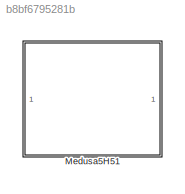
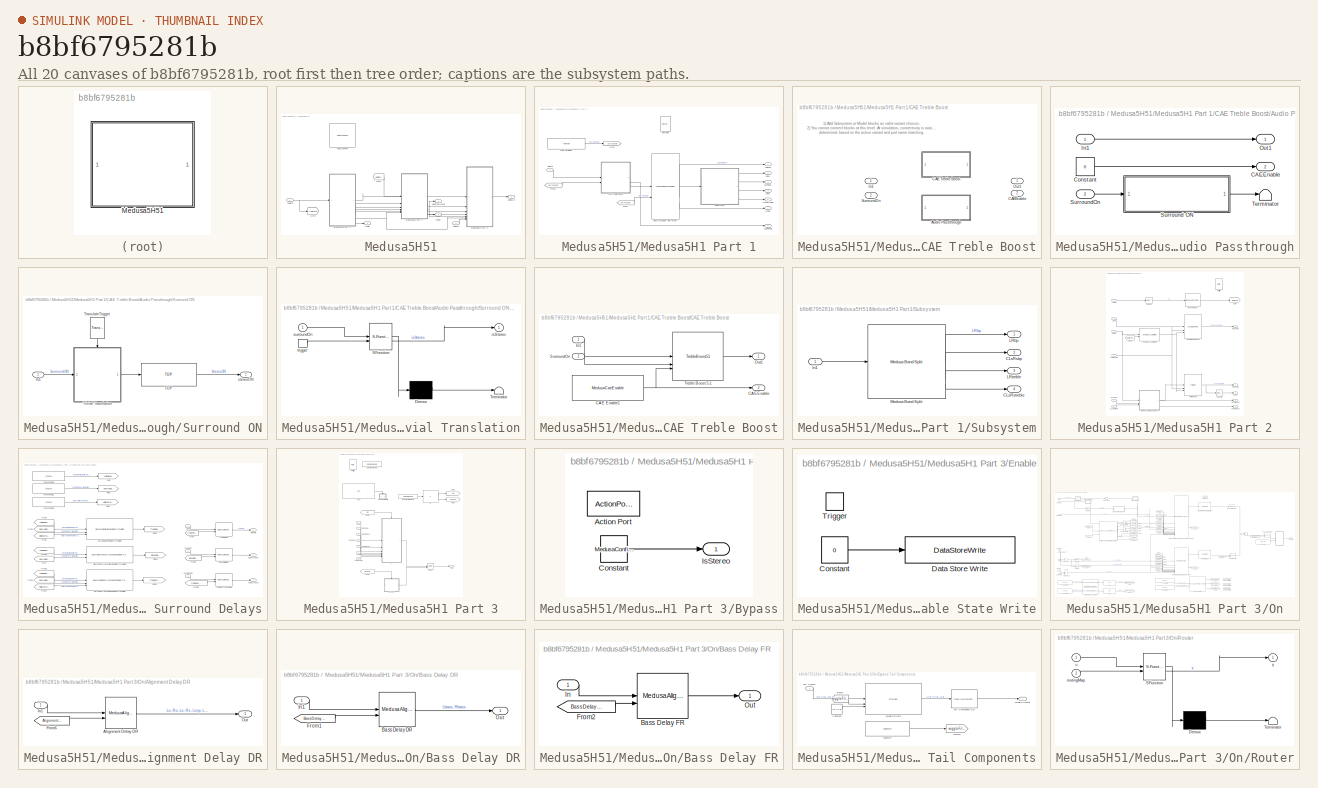
[diagram: thumbnail index - all 20 canvases of the model, root first then tree order]
MODEL slx_b8bf6795281b
KIND library
CONFIG AbsTol = auto
CONFIG EnableMultiTasking = off
CONFIG FixedStep = auto
CONFIG MaxStep = auto
CONFIG MinStep = auto
CONFIG RelTol = 1e-3
CONFIG SampleTimeConstraint = Unconstrained
CONFIG SolverName = VariableStepAuto
CONFIG StartTime = 0.0
CONFIG StopTime = 10.0
BLOCK [SubSystem] Medusa5H51
BLOCK [Inport] Medusa5H51/AudioIn
BLOCK [Outport] Medusa5H51/AudioOut
  VectorParamsAs1DForOutWhenUnconnected = off
BLOCK [Inport] Medusa5H51/FadeIn
  OutDataTypeStr = single
  Port = 2
BLOCK [Reference] Medusa5H51/FeaturePath  REF=FeaturePath/FeaturePath
  SourceBlock = FeaturePath/FeaturePath
  SourceProductName = Bose Talaria
  SourceType = Talaria Feature Path
BLOCK [From] Medusa5H51/From
  GotoTag = AudioIn
BLOCK [Goto] Medusa5H51/Goto
  GotoTag = AudioIn
BLOCK [Outport] Medusa5H51/HFRef
  Port = 3
BLOCK [Outport] Medusa5H51/HFRefSurround
  Port = 4
BLOCK [Outport] Medusa5H51/LFRef
  Port = 2
BLOCK [SubSystem] Medusa5H51/Medusa5H1 Part 1
  RTWSystemCode = Nonreusable function
  TreatAsAtomicUnit = on
BLOCK [Inport] Medusa5H51/Medusa5H1 Part 1/AudioIn
BLOCK [Reference] Medusa5H51/Medusa5H1 Part 1/Bass Manager with Mono  REF=BassManager/MedusaBassManager
  SourceBlock = BassManager/MedusaBassManager
  SourceType = Bass Manager
BLOCK [SubSystem] Medusa5H51/Medusa5H1 Part 1/CAE Treble Boost
  Variant = on
BLOCK [SubSystem] Medusa5H51/Medusa5H1 Part 1/CAE Treble Boost/Audio Passthrough
  VariantControl = include_CAE == 0
BLOCK [Outport] Medusa5H51/Medusa5H1 Part 1/CAE Treble Boost/Audio Passthrough/CAEEnable
  Port = 2
BLOCK [Constant] Medusa5H51/Medusa5H1 Part 1/CAE Treble Boost/Audio Passthrough/Constant
  OutDataTypeStr = int32
  SampleTime = -1
  Value = 0
BLOCK [Inport] Medusa5H51/Medusa5H1 Part 1/CAE Treble Boost/Audio Passthrough/In1
BLOCK [Outport] Medusa5H51/Medusa5H1 Part 1/CAE Treble Boost/Audio Passthrough/Out1
BLOCK [SubSystem] Medusa5H51/Medusa5H1 Part 1/CAE Treble Boost/Audio Passthrough/Surround ON
BLOCK [Inport] Medusa5H51/Medusa5H1 Part 1/CAE Treble Boost/Audio Passthrough/Surround ON/In1
BLOCK [Reference] Medusa5H51/Medusa5H1 Part 1/CAE Treble Boost/Audio Passthrough/Surround ON/TOP  REF=TOP/TOP
  SourceBlock = TOP/TOP
  SourceProductName = Bose Talaria
  SourceType = Talaria Target Overlay Parameter
BLOCK [Reference] Medusa5H51/Medusa5H1 Part 1/CAE Treble Boost/Audio Passthrough/Surround ON/TranslateTrigger  REF=TuneVar/TranslateTrigger
  NameLocation = left
  SourceBlock = TuneVar/TranslateTrigger
  SourceProductName = Bose Talaria
  SourceType = Talaria Translate Trigger
BLOCK [SubSystem] Medusa5H51/Medusa5H1 Part 1/CAE Treble Boost/Audio Passthrough/Surround ON/Trivial Translation
  ErrorFcn = Stateflow.Translate.translate
  PermitHierarchicalResolution = ExplicitOnly
  SFBlockType = MATLAB Function
  TreatAsAtomicUnit = on
BLOCK [Demux] Medusa5H51/Medusa5H1 Part 1/CAE Treble Boost/Audio Passthrough/Surround ON/Trivial Translation/ Demux 
  Outputs = 1
BLOCK [S-Function] Medusa5H51/Medusa5H1 Part 1/CAE Treble Boost/Audio Passthrough/Surround ON/Trivial Translation/ SFunction 
  EnableBusSupport = off
  FunctionName = sf_sfun
  PortCounts = [2 2]
  SFcnIsStateOwnerBlock = off
  SFunctionDeploymentMode = off
  Tag = Stateflow S-Function 6
BLOCK [Terminator] Medusa5H51/Medusa5H1 Part 1/CAE Treble Boost/Audio Passthrough/Surround ON/Trivial Translation/ Terminator 
BLOCK [Outport] Medusa5H51/Medusa5H1 Part 1/CAE Treble Boost/Audio Passthrough/Surround ON/Trivial Translation/isStereo
  VectorParamsAs1DForOutWhenUnconnected = off
BLOCK [Inport] Medusa5H51/Medusa5H1 Part 1/CAE Treble Boost/Audio Passthrough/Surround ON/Trivial Translation/surroundOn
BLOCK [TriggerPort] Medusa5H51/Medusa5H1 Part 1/CAE Treble Boost/Audio Passthrough/Surround ON/Trivial Translation/trigger
  ShowOutputPort = on
  StatesWhenEnabling = held
  TriggerType = function-call
  VariantControl = Variant
BLOCK [Outport] Medusa5H51/Medusa5H1 Part 1/CAE Treble Boost/Audio Passthrough/Surround ON/stereoON
  VectorParamsAs1DForOutWhenUnconnected = off
BLOCK [Inport] Medusa5H51/Medusa5H1 Part 1/CAE Treble Boost/Audio Passthrough/SurroundOn
  Port = 2
BLOCK [Terminator] Medusa5H51/Medusa5H1 Part 1/CAE Treble Boost/Audio Passthrough/Terminator
BLOCK [SubSystem] Medusa5H51/Medusa5H1 Part 1/CAE Treble Boost/CAE Treble Boost
  VariantControl = include_CAE == 1
BLOCK [Reference] Medusa5H51/Medusa5H1 Part 1/CAE Treble Boost/CAE Treble Boost/CAE Enable1  REF=MedusaCaeEnable/MedusaCaeEnable
  SourceBlock = MedusaCaeEnable/MedusaCaeEnable
BLOCK [Outport] Medusa5H51/Medusa5H1 Part 1/CAE Treble Boost/CAE Treble Boost/CAEEnable
  Port = 2
BLOCK [Inport] Medusa5H51/Medusa5H1 Part 1/CAE Treble Boost/CAE Treble Boost/In1
BLOCK [Outport] Medusa5H51/Medusa5H1 Part 1/CAE Treble Boost/CAE Treble Boost/Out1
BLOCK [Inport] Medusa5H51/Medusa5H1 Part 1/CAE Treble Boost/CAE Treble Boost/SurroundOn
  Port = 2
BLOCK [Reference] Medusa5H51/Medusa5H1 Part 1/CAE Treble Boost/CAE Treble Boost/Treble Boost 5.1  REF=TrebleBoost/TrebleBoost51
  SourceBlock = TrebleBoost/TrebleBoost51
BLOCK [Outport] Medusa5H51/Medusa5H1 Part 1/CAE Treble Boost/CAEEnable
  Port = 2
BLOCK [Inport] Medusa5H51/Medusa5H1 Part 1/CAE Treble Boost/In1
BLOCK [Outport] Medusa5H51/Medusa5H1 Part 1/CAE Treble Boost/Out1
BLOCK [Inport] Medusa5H51/Medusa5H1 Part 1/CAE Treble Boost/SurroundOn
  Port = 2
BLOCK [Outport] Medusa5H51/Medusa5H1 Part 1/CAEEnable
  Port = 6
BLOCK [Outport] Medusa5H51/Medusa5H1 Part 1/CLsRsbp
  Port = 4
  VectorParamsAs1DForOutWhenUnconnected = off
BLOCK [Outport] Medusa5H51/Medusa5H1 Part 1/CLsRstreble
  Port = 5
  VectorParamsAs1DForOutWhenUnconnected = off
BLOCK [From] Medusa5H51/Medusa5H1 Part 1/From
  GotoTag = SurroundOn
BLOCK [From] Medusa5H51/Medusa5H1 Part 1/From1
  GotoTag = SurroundOn
BLOCK [Goto] Medusa5H51/Medusa5H1 Part 1/Goto
  GotoTag = SurroundOn
BLOCK [Outport] Medusa5H51/Medusa5H1 Part 1/LFRef
  Port = 7
BLOCK [Outport] Medusa5H51/Medusa5H1 Part 1/LRbass
  VectorParamsAs1DForOutWhenUnconnected = off
BLOCK [Outport] Medusa5H51/Medusa5H1 Part 1/LRbp
  Port = 2
  VectorParamsAs1DForOutWhenUnconnected = off
BLOCK [Outport] Medusa5H51/Medusa5H1 Part 1/LRhp
  Port = 3
  VectorParamsAs1DForOutWhenUnconnected = off
BLOCK [Reference] Medusa5H51/Medusa5H1 Part 1/Partition  REF=FeaturePath/Partition
  SourceBlock = FeaturePath/Partition
  SourceProductName = Bose Talaria
  SourceType = Talaria Partition
BLOCK [SubSystem] Medusa5H51/Medusa5H1 Part 1/Subsystem
  FunctionWithSeparateData = on
  RTWFileName = MedusaBandSplit
  RTWFileNameOpts = User specified
  RTWSystemCode = Nonreusable function
  TreatAsAtomicUnit = on
BLOCK [Outport] Medusa5H51/Medusa5H1 Part 1/Subsystem/CLsRsbp
  Port = 2
  VectorParamsAs1DForOutWhenUnconnected = off
BLOCK [Outport] Medusa5H51/Medusa5H1 Part 1/Subsystem/CLsRstreble
  Port = 4
  VectorParamsAs1DForOutWhenUnconnected = off
BLOCK [Inport] Medusa5H51/Medusa5H1 Part 1/Subsystem/In1
BLOCK [Outport] Medusa5H51/Medusa5H1 Part 1/Subsystem/LRbp
  VectorParamsAs1DForOutWhenUnconnected = off
BLOCK [Outport] Medusa5H51/Medusa5H1 Part 1/Subsystem/LRtreble
  Port = 3
  VectorParamsAs1DForOutWhenUnconnected = off
BLOCK [Reference] Medusa5H51/Medusa5H1 Part 1/Subsystem/Medusa Band Split  REF=MedusaBandSplit/Medusa Band Split
  SourceBlock = MedusaBandSplit/Medusa Band Split
  SourceType = Medusa Band Split 5.1
BLOCK [Reference] Medusa5H51/Medusa5H1 Part 1/Tune Variable4  REF=TuneVar/TuneVar
  Description = General surround control parameter\nSTEREO_MODE = 0\nSURROUND_PASSTHRU_MODE = 1\nMEDUSA_2_CHANNEL_MODE = 2\nMEDUSA_5_1_MODE = 3
  SourceBlock = TuneVar/TuneVar
  SourceProductName = Bose Talaria
  SourceType = Talaria Tune Variable
BLOCK [SubSystem] Medusa5H51/Medusa5H1 Part 2
  RTWSystemCode = Nonreusable function
  TreatAsAtomicUnit = on
BLOCK [Inport] Medusa5H51/Medusa5H1 Part 2/AudioIn
  OutDataTypeStr = single
BLOCK [Inport] Medusa5H51/Medusa5H1 Part 2/CAEEnable
  Port = 6
BLOCK [Inport] Medusa5H51/Medusa5H1 Part 2/CLsRsbp
  Port = 4
BLOCK [Inport] Medusa5H51/Medusa5H1 Part 2/CLsRstreble
  Port = 5
BLOCK [Outport] Medusa5H51/Medusa5H1 Part 2/DRComps
  VectorParamsAs1DForOutWhenUnconnected = off
BLOCK [Outport] Medusa5H51/Medusa5H1 Part 2/DRSurround
  Port = 3
  VectorParamsAs1DForOutWhenUnconnected = off
BLOCK [Reference] Medusa5H51/Medusa5H1 Part 2/Decimated-Rate FDP  REF=MedusaFDP/Decimated-Rate
  SourceBlock = MedusaFDP/Decimated-Rate
  SourceType = Medusa Decimated-Rate Frequency Domain Processing
BLOCK [Outport] Medusa5H51/Medusa5H1 Part 2/FRComps
  Port = 2
  VectorParamsAs1DForOutWhenUnconnected = off
BLOCK [Outport] Medusa5H51/Medusa5H1 Part 2/FRSurround
  Port = 4
  VectorParamsAs1DForOutWhenUnconnected = off
BLOCK [From] Medusa5H51/Medusa5H1 Part 2/From1
  GotoTag = isStereo
BLOCK [Reference] Medusa5H51/Medusa5H1 Part 2/Full-Rate FDP  REF=MedusaFullRateFDP/Full-Rate
  SourceBlock = MedusaFullRateFDP/Full-Rate
  SourceType = Medusa Full-Rate Frequency Domain Processing
BLOCK [Goto] Medusa5H51/Medusa5H1 Part 2/Goto7
  GotoTag = isStereo
BLOCK [Outport] Medusa5H51/Medusa5H1 Part 2/HFRef
  Port = 5
BLOCK [Inport] Medusa5H51/Medusa5H1 Part 2/LRbp
  Port = 2
BLOCK [Inport] Medusa5H51/Medusa5H1 Part 2/LRhp
  Port = 3
BLOCK [Reference] Medusa5H51/Medusa5H1 Part 2/Mono Detector  REF=MonoDetector/MedusaMonoDetector
  SourceBlock = MonoDetector/MedusaMonoDetector
  SourceType = Mono Detector
BLOCK [Reference] Medusa5H51/Medusa5H1 Part 2/Partition  REF=FeaturePath/Partition
  SourceBlock = FeaturePath/Partition
  SourceProductName = Bose Talaria
  SourceType = Talaria Partition
BLOCK [Reference] Medusa5H51/Medusa5H1 Part 2/SPUM Decay Estimate  REF=MedusaSPUMDecayEst/SPUM Decay Estimate
  SourceBlock = MedusaSPUMDecayEst/SPUM Decay Estimate
BLOCK [Selector] Medusa5H51/Medusa5H1 Part 2/Selector
  IndexOptions = Select all,Index vector (dialog)
  Indices = [1 3],[1,2]
  InputPortWidth = 3
  NumberOfDimensions = 2
  OutputSizes = 1,1
BLOCK [Selector] Medusa5H51/Medusa5H1 Part 2/Selector1
  IndexOptions = Select all,Index vector (dialog)
  Indices = [1 3],[1 2 3 5]
  InputPortWidth = 3
  NumberOfDimensions = 2
  OutputSizes = 1,1
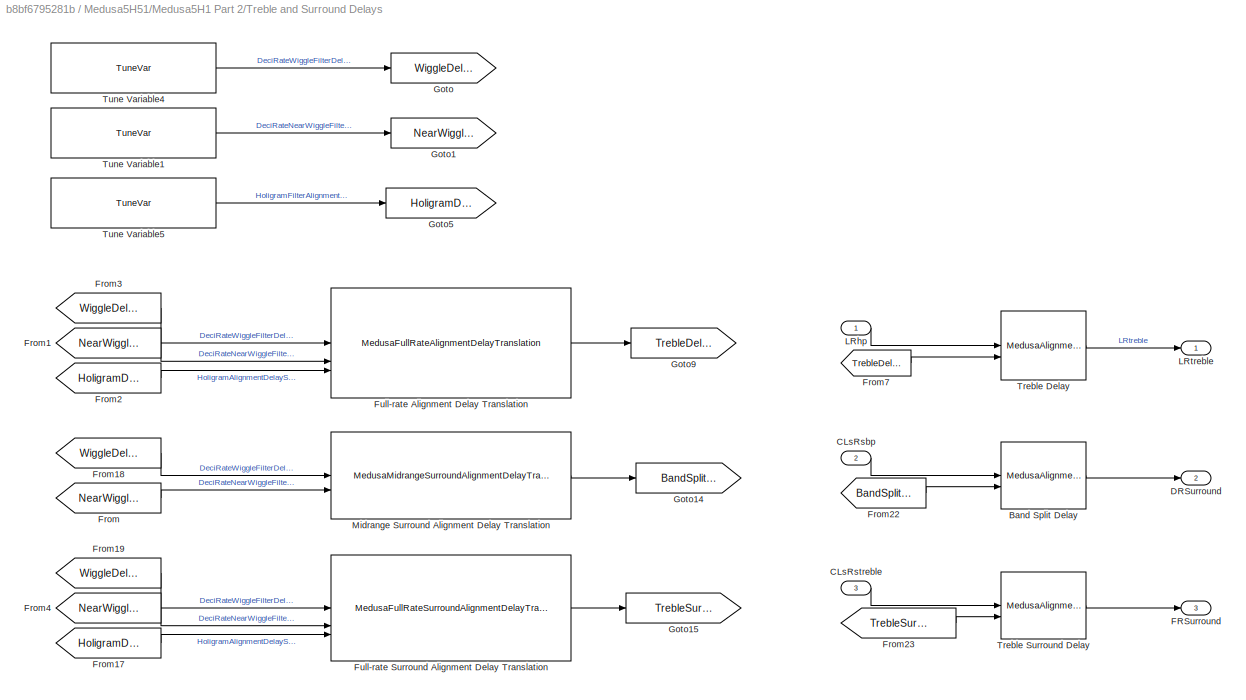
BLOCK [SubSystem] Medusa5H51/Medusa5H1 Part 2/Treble and Surround Delays
  FunctionWithSeparateData = on
  RTWSystemCode = Nonreusable function
  TreatAsAtomicUnit = on
BLOCK [Reference] Medusa5H51/Medusa5H1 Part 2/Treble and Surround Delays/Band Split Delay  REF=MedusaDelays/MedusaAlignmentDelay
  SourceBlock = MedusaDelays/MedusaAlignmentDelay
  SourceType = Fixed Alignment Delay
BLOCK [Inport] Medusa5H51/Medusa5H1 Part 2/Treble and Surround Delays/CLsRsbp
  Port = 2
BLOCK [Inport] Medusa5H51/Medusa5H1 Part 2/Treble and Surround Delays/CLsRstreble
  Port = 3
BLOCK [Outport] Medusa5H51/Medusa5H1 Part 2/Treble and Surround Delays/DRSurround
  Port = 2
BLOCK [Outport] Medusa5H51/Medusa5H1 Part 2/Treble and Surround Delays/FRSurround
  Port = 3
BLOCK [From] Medusa5H51/Medusa5H1 Part 2/Treble and Surround Delays/From
  GotoTag = NearWiggleDelay
BLOCK [From] Medusa5H51/Medusa5H1 Part 2/Treble and Surround Delays/From1
  GotoTag = NearWiggleDelay
BLOCK [From] Medusa5H51/Medusa5H1 Part 2/Treble and Surround Delays/From17
  GotoTag = HoligramDelay
BLOCK [From] Medusa5H51/Medusa5H1 Part 2/Treble and Surround Delays/From18
  GotoTag = WiggleDelay
BLOCK [From] Medusa5H51/Medusa5H1 Part 2/Treble and Surround Delays/From19
  GotoTag = WiggleDelay
BLOCK [From] Medusa5H51/Medusa5H1 Part 2/Treble and Surround Delays/From2
  GotoTag = HoligramDelay
BLOCK [From] Medusa5H51/Medusa5H1 Part 2/Treble and Surround Delays/From22
  GotoTag = BandSplitDelay
BLOCK [From] Medusa5H51/Medusa5H1 Part 2/Treble and Surround Delays/From23
  GotoTag = TrebleSurroundDelay
BLOCK [From] Medusa5H51/Medusa5H1 Part 2/Treble and Surround Delays/From3
  GotoTag = WiggleDelay
BLOCK [From] Medusa5H51/Medusa5H1 Part 2/Treble and Surround Delays/From4
  GotoTag = NearWiggleDelay
BLOCK [From] Medusa5H51/Medusa5H1 Part 2/Treble and Surround Delays/From7
  GotoTag = TrebleDelay
BLOCK [Reference] Medusa5H51/Medusa5H1 Part 2/Treble and Surround Delays/Full-rate Alignment Delay Translation  REF=MedusaDelays/MedusaFullRateAlignmentDelayTranslation
  SourceBlock = MedusaDelays/MedusaFullRateAlignmentDelayTranslation
  SourceType = Alignment Delay Translation
BLOCK [Reference] Medusa5H51/Medusa5H1 Part 2/Treble and Surround Delays/Full-rate Surround Alignment Delay Translation  REF=MedusaDelays/MedusaFullRateSurroundAlignmentDelayTranslation
  SourceBlock = MedusaDelays/MedusaFullRateSurroundAlignmentDelayTranslation
BLOCK [Goto] Medusa5H51/Medusa5H1 Part 2/Treble and Surround Delays/Goto
  GotoTag = WiggleDelay
BLOCK [Goto] Medusa5H51/Medusa5H1 Part 2/Treble and Surround Delays/Goto1
  GotoTag = NearWiggleDelay
BLOCK [Goto] Medusa5H51/Medusa5H1 Part 2/Treble and Surround Delays/Goto14
  GotoTag = BandSplitDelay
BLOCK [Goto] Medusa5H51/Medusa5H1 Part 2/Treble and Surround Delays/Goto15
  GotoTag = TrebleSurroundDelay
BLOCK [Goto] Medusa5H51/Medusa5H1 Part 2/Treble and Surround Delays/Goto5
  GotoTag = HoligramDelay
BLOCK [Goto] Medusa5H51/Medusa5H1 Part 2/Treble and Surround Delays/Goto9
  GotoTag = TrebleDelay
BLOCK [Inport] Medusa5H51/Medusa5H1 Part 2/Treble and Surround Delays/LRhp
BLOCK [Outport] Medusa5H51/Medusa5H1 Part 2/Treble and Surround Delays/LRtreble
BLOCK [Reference] Medusa5H51/Medusa5H1 Part 2/Treble and Surround Delays/Midrange Surround Alignment Delay Translation  REF=MedusaDelays/MedusaMidrangeSurroundAlignmentDelayTranslation
  SourceBlock = MedusaDelays/MedusaMidrangeSurroundAlignmentDelayTranslation
BLOCK [Reference] Medusa5H51/Medusa5H1 Part 2/Treble and Surround Delays/Treble Delay  REF=MedusaDelays/MedusaAlignmentDelay
  SourceBlock = MedusaDelays/MedusaAlignmentDelay
  SourceType = Fixed Alignment Delay
BLOCK [Reference] Medusa5H51/Medusa5H1 Part 2/Treble and Surround Delays/Treble Surround Delay  REF=MedusaDelays/MedusaAlignmentDelay
  SourceBlock = MedusaDelays/MedusaAlignmentDelay
  SourceType = Fixed Alignment Delay
BLOCK [Reference] Medusa5H51/Medusa5H1 Part 2/Treble and Surround Delays/Tune Variable1  REF=TuneVar/TuneVar
  SourceBlock = TuneVar/TuneVar
  SourceProductName = Bose Talaria
  SourceType = Talaria Tune Variable
BLOCK [Reference] Medusa5H51/Medusa5H1 Part 2/Treble and Surround Delays/Tune Variable4  REF=TuneVar/TuneVar
  SourceBlock = TuneVar/TuneVar
  SourceProductName = Bose Talaria
  SourceType = Talaria Tune Variable
BLOCK [Reference] Medusa5H51/Medusa5H1 Part 2/Treble and Surround Delays/Tune Variable5  REF=TuneVar/TuneVar
  SourceBlock = TuneVar/TuneVar
  SourceProductName = Bose Talaria
  SourceType = Talaria Tune Variable
BLOCK [SubSystem] Medusa5H51/Medusa5H1 Part 3
  FunctionWithSeparateData = on
  RTWSystemCode = Nonreusable function
  TreatAsAtomicUnit = on
BLOCK [Inport] Medusa5H51/Medusa5H1 Part 3/Bass
BLOCK [SubSystem] Medusa5H51/Medusa5H1 Part 3/Bypass
BLOCK [ActionPort] Medusa5H51/Medusa5H1 Part 3/Bypass/Action Port
BLOCK [Constant] Medusa5H51/Medusa5H1 Part 3/Bypass/Constant
  OutDataTypeStr = single
  Value = MedusaConfig.outputDefault
BLOCK [Outport] Medusa5H51/Medusa5H1 Part 3/Bypass/IsStereo
  VectorParamsAs1DForOutWhenUnconnected = off
BLOCK [Inport] Medusa5H51/Medusa5H1 Part 3/CAEEnable
  Port = 6
BLOCK [Inport] Medusa5H51/Medusa5H1 Part 3/DRComps
  Port = 2
BLOCK [Inport] Medusa5H51/Medusa5H1 Part 3/DRSurround
  Port = 4
BLOCK [DataStoreMemory] Medusa5H51/Medusa5H1 Part 3/Data Store Memory
  DataStoreName = MedusaPostUpmixEnable
  InitialValue = 1
  OutDataTypeStr = uint32
  ReadBeforeWriteMsg = warning
  ShowAdditionalParam = off
  WriteAfterReadMsg = warning
  WriteAfterWriteMsg = warning
BLOCK [DataStoreRead] Medusa5H51/Medusa5H1 Part 3/Enable State Read
  DataStoreName = MedusaPostUpmixEnable
  IndexOptions = Index vector (dialog)
  Indices = 1
  OutputSizes = 1
BLOCK [SubSystem] Medusa5H51/Medusa5H1 Part 3/Enable State Write
BLOCK [Constant] Medusa5H51/Medusa5H1 Part 3/Enable State Write/Constant
  OutDataTypeStr = uint32
  Value = 0
BLOCK [DataStoreWrite] Medusa5H51/Medusa5H1 Part 3/Enable State Write/Data Store Write
  DataStoreName = MedusaPostUpmixEnable
  IndexOptions = Index vector (dialog)
  Indices = 1
  OutputSizes = 1
BLOCK [TriggerPort] Medusa5H51/Medusa5H1 Part 3/Enable State Write/Trigger
  PortDimensions = 1
  StatesWhenEnabling = held
  TriggerType = function-call
  VariantControl = Variant
BLOCK [Inport] Medusa5H51/Medusa5H1 Part 3/FRComps
  Port = 3
BLOCK [Inport] Medusa5H51/Medusa5H1 Part 3/FRSurround
  Port = 5
BLOCK [Inport] Medusa5H51/Medusa5H1 Part 3/FadeIn
  Port = 7
BLOCK [From] Medusa5H51/Medusa5H1 Part 3/From1
  GotoTag = Bypass
BLOCK [From] Medusa5H51/Medusa5H1 Part 3/From2
  GotoTag = On
BLOCK [Goto] Medusa5H51/Medusa5H1 Part 3/Goto2
  GotoTag = On
BLOCK [Goto] Medusa5H51/Medusa5H1 Part 3/Goto3
  GotoTag = Bypass
BLOCK [If] Medusa5H51/Medusa5H1 Part 3/If
BLOCK [Merge] Medusa5H51/Medusa5H1 Part 3/Merge
  InitialOutput = MedusaConfig.outputDefault
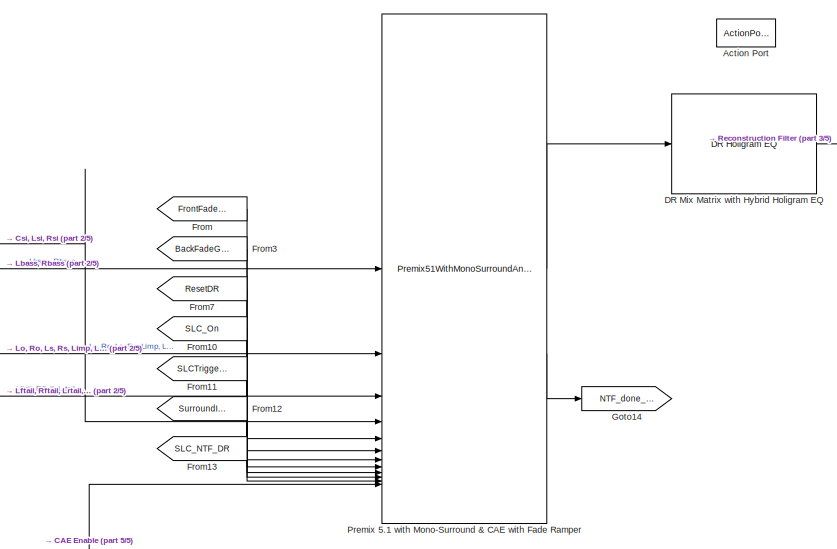
[diagram: Medusa5H51/Medusa5H1 Part 3/On - part 1/5, top center region]
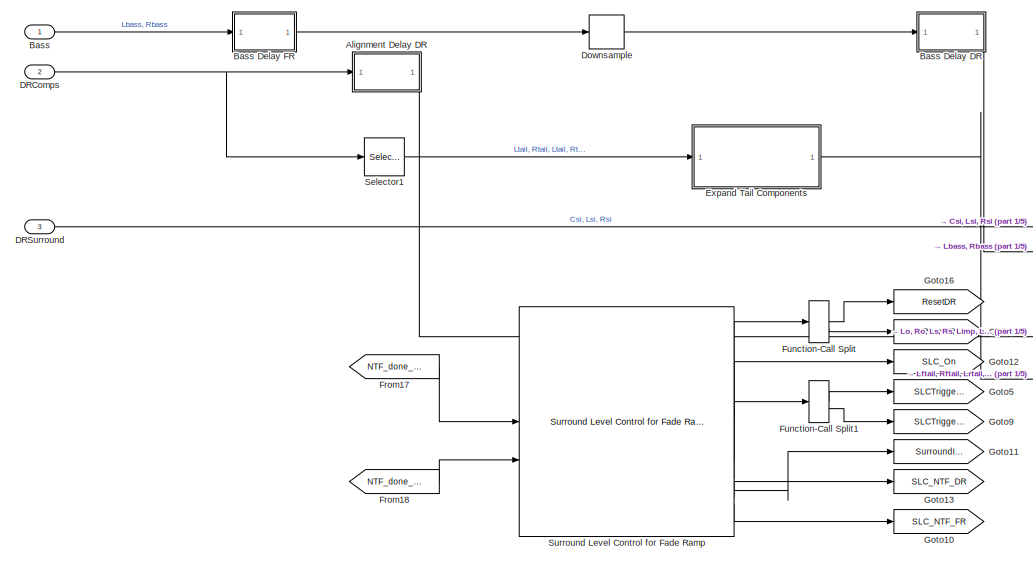
[diagram: Medusa5H51/Medusa5H1 Part 3/On - part 2/5, top left region]
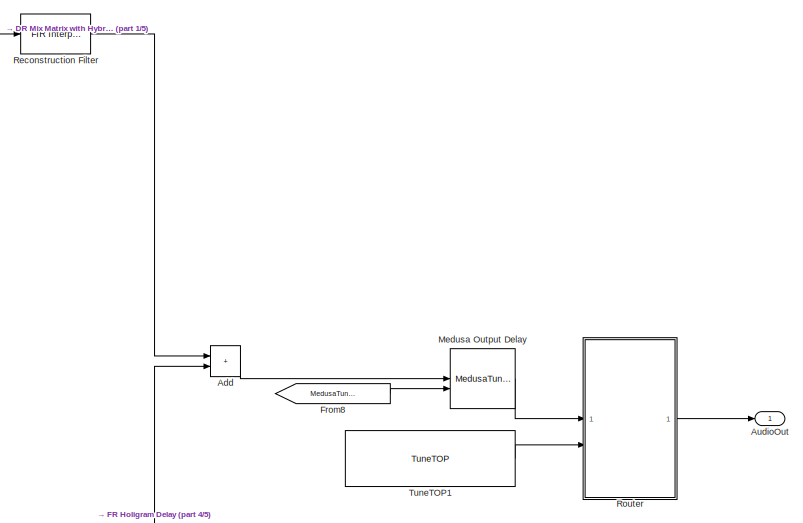
[diagram: Medusa5H51/Medusa5H1 Part 3/On - part 3/5, top right region]
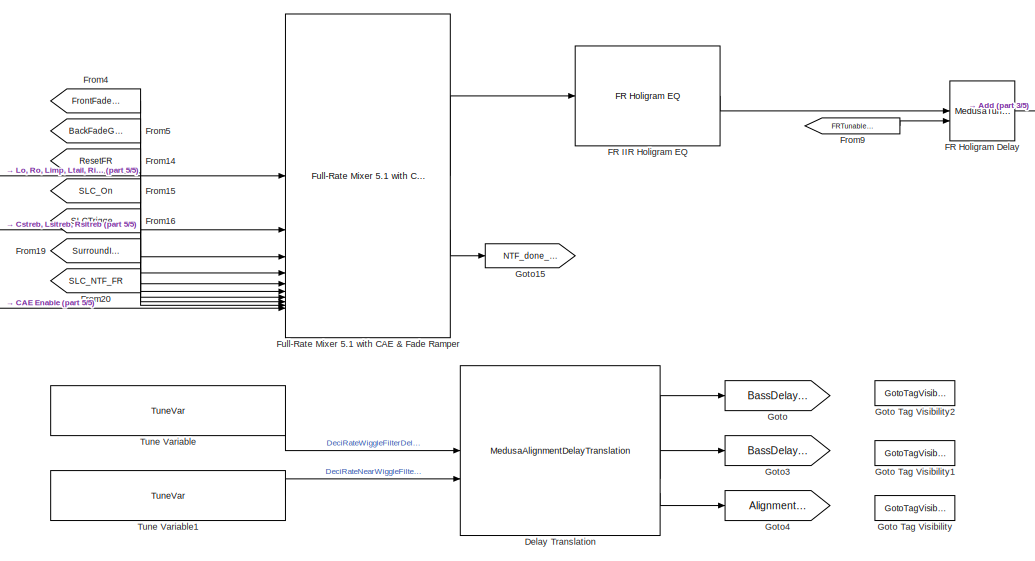
[diagram: Medusa5H51/Medusa5H1 Part 3/On - part 4/5, bottom center region]
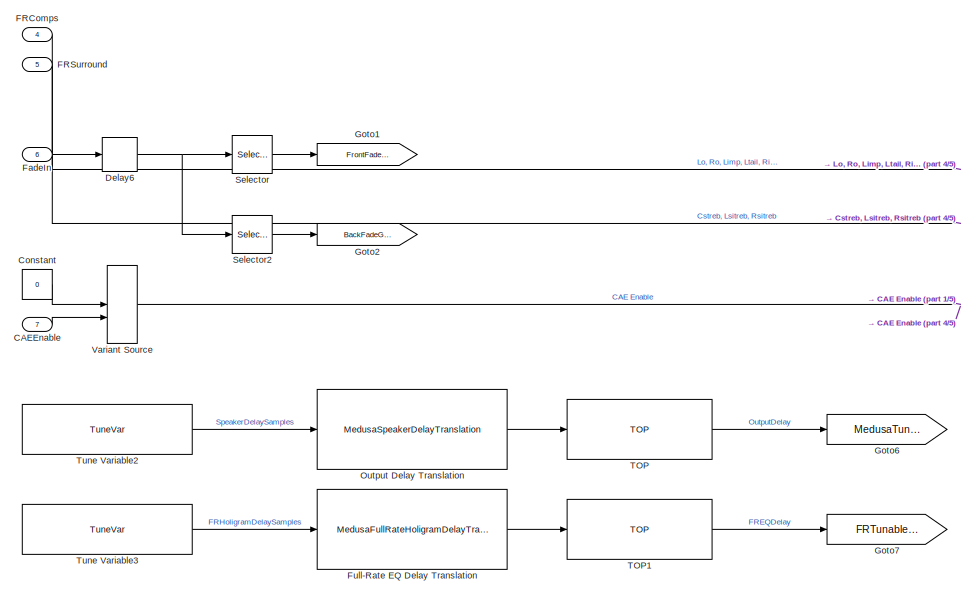
[diagram: Medusa5H51/Medusa5H1 Part 3/On - part 5/5, bottom left region]
BLOCK [SubSystem] Medusa5H51/Medusa5H1 Part 3/On
BLOCK [ActionPort] Medusa5H51/Medusa5H1 Part 3/On/Action Port
BLOCK [Sum] Medusa5H51/Medusa5H1 Part 3/On/Add
  IconShape = rectangular
BLOCK [SubSystem] Medusa5H51/Medusa5H1 Part 3/On/Alignment Delay DR
BLOCK [Reference] Medusa5H51/Medusa5H1 Part 3/On/Alignment Delay DR/Alignment Delay DR  REF=MedusaDelays/MedusaAlignmentDelay
  SourceBlock = MedusaDelays/MedusaAlignmentDelay
  SourceType = Fixed Alignment Delay
BLOCK [From] Medusa5H51/Medusa5H1 Part 3/On/Alignment Delay DR/From6
  GotoTag = AlignmentDelay
  TagVisibility = scoped
BLOCK [Inport] Medusa5H51/Medusa5H1 Part 3/On/Alignment Delay DR/In1
BLOCK [Outport] Medusa5H51/Medusa5H1 Part 3/On/Alignment Delay DR/Out
BLOCK [Outport] Medusa5H51/Medusa5H1 Part 3/On/AudioOut
  VectorParamsAs1DForOutWhenUnconnected = off
BLOCK [Inport] Medusa5H51/Medusa5H1 Part 3/On/Bass
  OutDataTypeStr = single
BLOCK [SubSystem] Medusa5H51/Medusa5H1 Part 3/On/Bass Delay DR
BLOCK [Reference] Medusa5H51/Medusa5H1 Part 3/On/Bass Delay DR/Bass Delay DR  REF=MedusaDelays/MedusaAlignmentDelay
  SourceBlock = MedusaDelays/MedusaAlignmentDelay
  SourceType = Fixed Alignment Delay
BLOCK [From] Medusa5H51/Medusa5H1 Part 3/On/Bass Delay DR/From1
  GotoTag = BassDelayDec
  TagVisibility = scoped
BLOCK [Inport] Medusa5H51/Medusa5H1 Part 3/On/Bass Delay DR/In1
BLOCK [Outport] Medusa5H51/Medusa5H1 Part 3/On/Bass Delay DR/Out
BLOCK [SubSystem] Medusa5H51/Medusa5H1 Part 3/On/Bass Delay FR
BLOCK [Reference] Medusa5H51/Medusa5H1 Part 3/On/Bass Delay FR/Bass Delay FR  REF=MedusaDelays/MedusaAlignmentDelay
  SourceBlock = MedusaDelays/MedusaAlignmentDelay
  SourceType = Fixed Alignment Delay
BLOCK [From] Medusa5H51/Medusa5H1 Part 3/On/Bass Delay FR/From2
  GotoTag = BassDelayFull
  TagVisibility = scoped
BLOCK [Inport] Medusa5H51/Medusa5H1 Part 3/On/Bass Delay FR/In
BLOCK [Outport] Medusa5H51/Medusa5H1 Part 3/On/Bass Delay FR/Out
BLOCK [Inport] Medusa5H51/Medusa5H1 Part 3/On/CAEEnable
  Port = 7
BLOCK [Constant] Medusa5H51/Medusa5H1 Part 3/On/Constant
  OutDataTypeStr = int32
  SampleTime = -1
  Value = 0
BLOCK [Reference] Medusa5H51/Medusa5H1 Part 3/On/DR Mix Matrix with Hybrid Holigram EQ  REF=MedusaDRHoligramEQ/DR Holigram EQ
  SourceBlock = MedusaDRHoligramEQ/DR Holigram EQ
BLOCK [Inport] Medusa5H51/Medusa5H1 Part 3/On/DRComps
  OutDataTypeStr = single
  Port = 2
BLOCK [Inport] Medusa5H51/Medusa5H1 Part 3/On/DRSurround
  Port = 3
BLOCK [Reference] Medusa5H51/Medusa5H1 Part 3/On/Delay Translation  REF=MedusaDelays/MedusaAlignmentDelayTranslation
  SourceBlock = MedusaDelays/MedusaAlignmentDelayTranslation
  SourceType = Alignment Delay Translation
BLOCK [Delay] Medusa5H51/Medusa5H1 Part 3/On/Delay6
  DelayLength = 1
  InitialCondition = 1.0
  InputPortMap = u0
BLOCK [DownSample] Medusa5H51/Medusa5H1 Part 3/On/Downsample
  N = 4
BLOCK [SubSystem] Medusa5H51/Medusa5H1 Part 3/On/Expand Tail Components
  FunctionWithSeparateData = on
  RTWFileName = MedusaExpandTailComps
  RTWFileNameOpts = User specified
  RTWSystemCode = Nonreusable function
  TreatAsAtomicUnit = on
BLOCK [Constant] Medusa5H51/Medusa5H1 Part 3/On/Expand Tail Components/Constant
  OutDataTypeStr = single
  SampleTime = -1
  Value = [0 1 2 3]
BLOCK [From] Medusa5H51/Medusa5H1 Part 3/On/Expand Tail Components/From6
  GotoTag = wiggleFilter
BLOCK [Goto] Medusa5H51/Medusa5H1 Part 3/On/Expand Tail Components/Goto10
  GotoTag = wiggleFilter
BLOCK [Reference] Medusa5H51/Medusa5H1 Part 3/On/Expand Tail Components/Tail Component EQ  REF=PooliirLib/PooliirwithNonTrivialTranslations
  SourceBlock = PooliirLib/PooliirwithNonTrivialTranslations
  SourceType = Bose Pool IIR
BLOCK [Inport] Medusa5H51/Medusa5H1 Part 3/On/Expand Tail Components/Tail Comps
BLOCK [Reference] Medusa5H51/Medusa5H1 Part 3/On/Expand Tail Components/TuneTOP  REF=TuneVar/TuneTOP
  SourceBlock = TuneVar/TuneTOP
  SourceProductName = Bose Talaria
  SourceType = Talaria Trivial Tune TOP
BLOCK [Outport] Medusa5H51/Medusa5H1 Part 3/On/Expand Tail Components/Wiggle Comps
  VectorParamsAs1DForOutWhenUnconnected = off
BLOCK [Reference] Medusa5H51/Medusa5H1 Part 3/On/Expand Tail Components/Wiggle Filters  REF=FirEven/FirEven
  SourceBlock = FirEven/FirEven
  SourceProductName = Bose Blocklib
BLOCK [Reference] Medusa5H51/Medusa5H1 Part 3/On/FR Holigram Delay  REF=MedusaDelays/MedusaTunableDelay
  SourceBlock = MedusaDelays/MedusaTunableDelay
  SourceType = Tunable Delay
BLOCK [Reference] Medusa5H51/Medusa5H1 Part 3/On/FR IIR Holigram EQ  REF=MedusaFRHoligramEQ/FR Holigram EQ
  SourceBlock = MedusaFRHoligramEQ/FR Holigram EQ
BLOCK [Inport] Medusa5H51/Medusa5H1 Part 3/On/FRComps
  OutDataTypeStr = single
  Port = 4
BLOCK [Inport] Medusa5H51/Medusa5H1 Part 3/On/FRSurround
  Port = 5
BLOCK [Inport] Medusa5H51/Medusa5H1 Part 3/On/FadeIn
  OutDataTypeStr = single
  Port = 6
BLOCK [From] Medusa5H51/Medusa5H1 Part 3/On/From
  GotoTag = FrontFadeGain
BLOCK [From] Medusa5H51/Medusa5H1 Part 3/On/From10
  GotoTag = SLC_On
BLOCK [From] Medusa5H51/Medusa5H1 Part 3/On/From11
  GotoTag = SLCTriggerDR
BLOCK [From] Medusa5H51/Medusa5H1 Part 3/On/From12
  GotoTag = SurroundInfo
BLOCK [From] Medusa5H51/Medusa5H1 Part 3/On/From13
  GotoTag = SLC_NTF_DR
BLOCK [From] Medusa5H51/Medusa5H1 Part 3/On/From14
  GotoTag = ResetFR
BLOCK [From] Medusa5H51/Medusa5H1 Part 3/On/From15
  GotoTag = SLC_On
BLOCK [From] Medusa5H51/Medusa5H1 Part 3/On/From16
  GotoTag = SLCTriggerFR
BLOCK [From] Medusa5H51/Medusa5H1 Part 3/On/From17
  GotoTag = NTF_done_DR
BLOCK [From] Medusa5H51/Medusa5H1 Part 3/On/From18
  GotoTag = NTF_done_FR
BLOCK [From] Medusa5H51/Medusa5H1 Part 3/On/From19
  GotoTag = SurroundInfo
BLOCK [From] Medusa5H51/Medusa5H1 Part 3/On/From20
  GotoTag = SLC_NTF_FR
BLOCK [From] Medusa5H51/Medusa5H1 Part 3/On/From3
  GotoTag = BackFadeGain
BLOCK [From] Medusa5H51/Medusa5H1 Part 3/On/From4
  GotoTag = FrontFadeGain
BLOCK [From] Medusa5H51/Medusa5H1 Part 3/On/From5
  GotoTag = BackFadeGain
BLOCK [From] Medusa5H51/Medusa5H1 Part 3/On/From7
  GotoTag = ResetDR
BLOCK [From] Medusa5H51/Medusa5H1 Part 3/On/From8
  GotoTag = MedusaTunableDelay
BLOCK [From] Medusa5H51/Medusa5H1 Part 3/On/From9
  GotoTag = FRTunableDelay
BLOCK [Reference] Medusa5H51/Medusa5H1 Part 3/On/Full-Rate EQ Delay Translation  REF=MedusaDelays/MedusaFullRateHoligramDelayTranslation
  SourceBlock = MedusaDelays/MedusaFullRateHoligramDelayTranslation
  SourceType = Tunable Delay Translation
BLOCK [Reference] Medusa5H51/Medusa5H1 Part 3/On/Full-Rate Mixer 5.1 with CAE & Fade Ramper  REF=MedusaFullRateMixer/Full-Rate Mixer 5.1 with CAE & Fade Ramper
  SourceBlock = MedusaFullRateMixer/Full-Rate Mixer 5.1 with CAE & Fade Ramper
BLOCK [FunctionCallSplit] Medusa5H51/Medusa5H1 Part 3/On/Function-Call Split
  IconShape = distinctive
  NumOutputPorts = 2
  OutputPortLayout = default
BLOCK [FunctionCallSplit] Medusa5H51/Medusa5H1 Part 3/On/Function-Call Split1
  IconShape = distinctive
  NumOutputPorts = 2
  OutputPortLayout = default
BLOCK [Goto] Medusa5H51/Medusa5H1 Part 3/On/Goto
  GotoTag = BassDelayDec
  TagVisibility = scoped
BLOCK [GotoTagVisibility] Medusa5H51/Medusa5H1 Part 3/On/Goto Tag Visibility
  GotoTag = AlignmentDelay
BLOCK [GotoTagVisibility] Medusa5H51/Medusa5H1 Part 3/On/Goto Tag Visibility1
  GotoTag = BassDelayFull
BLOCK [GotoTagVisibility] Medusa5H51/Medusa5H1 Part 3/On/Goto Tag Visibility2
  GotoTag = BassDelayDec
BLOCK [Goto] Medusa5H51/Medusa5H1 Part 3/On/Goto1
  GotoTag = FrontFadeGain
BLOCK [Goto] Medusa5H51/Medusa5H1 Part 3/On/Goto10
  GotoTag = SLC_NTF_FR
BLOCK [Goto] Medusa5H51/Medusa5H1 Part 3/On/Goto11
  GotoTag = SurroundInfo
BLOCK [Goto] Medusa5H51/Medusa5H1 Part 3/On/Goto12
  GotoTag = SLC_On
BLOCK [Goto] Medusa5H51/Medusa5H1 Part 3/On/Goto13
  GotoTag = SLC_NTF_DR
BLOCK [Goto] Medusa5H51/Medusa5H1 Part 3/On/Goto14
  GotoTag = NTF_done_DR
BLOCK [Goto] Medusa5H51/Medusa5H1 Part 3/On/Goto15
  GotoTag = NTF_done_FR
BLOCK [Goto] Medusa5H51/Medusa5H1 Part 3/On/Goto16
  GotoTag = ResetDR
BLOCK [Goto] Medusa5H51/Medusa5H1 Part 3/On/Goto2
  GotoTag = BackFadeGain
BLOCK [Goto] Medusa5H51/Medusa5H1 Part 3/On/Goto3
  GotoTag = BassDelayFull
  TagVisibility = scoped
BLOCK [Goto] Medusa5H51/Medusa5H1 Part 3/On/Goto4
  GotoTag = AlignmentDelay
  TagVisibility = scoped
BLOCK [Goto] Medusa5H51/Medusa5H1 Part 3/On/Goto5
  GotoTag = SLCTriggerDR
BLOCK [Goto] Medusa5H51/Medusa5H1 Part 3/On/Goto6
  GotoTag = MedusaTunableDelay
BLOCK [Goto] Medusa5H51/Medusa5H1 Part 3/On/Goto7
  GotoTag = FRTunableDelay
BLOCK [Goto] Medusa5H51/Medusa5H1 Part 3/On/Goto8
  GotoTag = ResetFR
BLOCK [Goto] Medusa5H51/Medusa5H1 Part 3/On/Goto9
  GotoTag = SLCTriggerFR
BLOCK [Reference] Medusa5H51/Medusa5H1 Part 3/On/Medusa Output Delay  REF=MedusaDelays/MedusaTunableDelay
  SourceBlock = MedusaDelays/MedusaTunableDelay
  SourceType = Tunable Delay
BLOCK [Reference] Medusa5H51/Medusa5H1 Part 3/On/Output Delay Translation  REF=MedusaDelays/MedusaSpeakerDelayTranslation
  SourceBlock = MedusaDelays/MedusaSpeakerDelayTranslation
  SourceType = Tunable Delay Translation
BLOCK [Reference] Medusa5H51/Medusa5H1 Part 3/On/Premix 5.1 with Mono-Surround & CAE with Fade Ramper  REF=MedusaPremix/Premix51WithMonoSurroundAndCaeWithFadeRamper
  SourceBlock = MedusaPremix/Premix51WithMonoSurroundAndCaeWithFadeRamper
  SourceType = Medusa Premix 5H
BLOCK [Reference] Medusa5H51/Medusa5H1 Part 3/On/Reconstruction Filter  REF=dspmlti4/FIR
Interpolation
  SourceBlock = dspmlti4/FIR\nInterpolation
  SourceType = FIR Interpolation
  UserDataPersistent = on
BLOCK [SubSystem] Medusa5H51/Medusa5H1 Part 3/On/Router
  ErrorFcn = Stateflow.Translate.translate
  PermitHierarchicalResolution = ExplicitOnly
  SFBlockType = MATLAB Function
  TreatAsAtomicUnit = on
BLOCK [Demux] Medusa5H51/Medusa5H1 Part 3/On/Router/ Demux 
  Outputs = 1
BLOCK [S-Function] Medusa5H51/Medusa5H1 Part 3/On/Router/ SFunction 
  EnableBusSupport = off
  FunctionName = sf_sfun
  PortCounts = [2 2]
  SFcnIsStateOwnerBlock = off
  SFunctionDeploymentMode = off
  Tag = Stateflow S-Function 5
BLOCK [Terminator] Medusa5H51/Medusa5H1 Part 3/On/Router/ Terminator 
BLOCK [Inport] Medusa5H51/Medusa5H1 Part 3/On/Router/routingMap
  Port = 2
BLOCK [Inport] Medusa5H51/Medusa5H1 Part 3/On/Router/u
BLOCK [Outport] Medusa5H51/Medusa5H1 Part 3/On/Router/y
  VectorParamsAs1DForOutWhenUnconnected = off
BLOCK [Selector] Medusa5H51/Medusa5H1 Part 3/On/Selector
  IndexOptions = Index vector (dialog),Index vector (dialog)
  Indices = 1,1
  InputPortWidth = 2
  NumberOfDimensions = 2
  OutputSizes = 1,1
BLOCK [Selector] Medusa5H51/Medusa5H1 Part 3/On/Selector1
  IndexOptions = Select all,Index vector (dialog)
  Indices = [1 3],[6 8 6 8]
  InputPortWidth = 3
  NumberOfDimensions = 2
  OutputSizes = 1,1
BLOCK [Selector] Medusa5H51/Medusa5H1 Part 3/On/Selector2
  IndexOptions = Index vector (dialog),Index vector (dialog)
  Indices = 1,2
  InputPortWidth = 2
  NumberOfDimensions = 2
  OutputSizes = 1,1
BLOCK [Reference] Medusa5H51/Medusa5H1 Part 3/On/Surround Level Control for Fade Ramp  REF=MedusaSurroundLevelControl/Surround Level Control for Fade Ramp
  SourceBlock = MedusaSurroundLevelControl/Surround Level Control for Fade Ramp
BLOCK [Reference] Medusa5H51/Medusa5H1 Part 3/On/TOP  REF=TOP/TOP
  SourceBlock = TOP/TOP
  SourceProductName = Bose Talaria
  SourceType = Talaria Target Overlay Parameter
BLOCK [Reference] Medusa5H51/Medusa5H1 Part 3/On/TOP1  REF=TOP/TOP
  SourceBlock = TOP/TOP
  SourceProductName = Bose Talaria
  SourceType = Talaria Target Overlay Parameter
BLOCK [Reference] Medusa5H51/Medusa5H1 Part 3/On/Tune Variable  REF=TuneVar/TuneVar
  SourceBlock = TuneVar/TuneVar
  SourceProductName = Bose Talaria
  SourceType = Talaria Tune Variable
BLOCK [Reference] Medusa5H51/Medusa5H1 Part 3/On/Tune Variable1  REF=TuneVar/TuneVar
  SourceBlock = TuneVar/TuneVar
  SourceProductName = Bose Talaria
  SourceType = Talaria Tune Variable
BLOCK [Reference] Medusa5H51/Medusa5H1 Part 3/On/Tune Variable2  REF=TuneVar/TuneVar
  SourceBlock = TuneVar/TuneVar
  SourceProductName = Bose Talaria
  SourceType = Talaria Tune Variable
BLOCK [Reference] Medusa5H51/Medusa5H1 Part 3/On/Tune Variable3  REF=TuneVar/TuneVar
  SourceBlock = TuneVar/TuneVar
  SourceProductName = Bose Talaria
  SourceType = Talaria Tune Variable
BLOCK [Reference] Medusa5H51/Medusa5H1 Part 3/On/TuneTOP1  REF=TuneVar/TuneTOP
  SourceBlock = TuneVar/TuneTOP
  SourceProductName = Bose Talaria
  SourceType = Talaria Trivial Tune TOP
BLOCK [VariantSource] Medusa5H51/Medusa5H1 Part 3/On/Variant Source
BLOCK [Outport] Medusa5H51/Medusa5H1 Part 3/Out1
  VectorParamsAs1DForOutWhenUnconnected = off
BLOCK [Reference] Medusa5H51/Medusa5H1 Part 3/Partition  REF=FeaturePath/Partition
  SourceBlock = FeaturePath/Partition
  SourceProductName = Bose Talaria
  SourceType = Talaria Partition
BLOCK [Reference] Medusa5H51/Medusa5H1 Part 3/RTC  REF=RTC/RTC
  SourceBlock = RTC/RTC
  SourceProductName = Bose Talaria
  SourceType = Talaria RTC Receive
ANNOTATION Medusa5H51/Medusa5H1 Part 1/CAE Treble Boost: 1) Add Subsystem or Model blocks as valid variant choices. 2) You cannot connect blocks at this level. At simulation, connectivity is automatically determined, based on the active variant and port name matching.
CHART Medusa5H51/Medusa5H1 Part 3/On/Router states=1 transitions=1
  STATE_LABEL 'eML_blk_kernel()'
  STATE_LABEL 'SCRIPT:\nfunction y = fcn(u, routingMap)\n\n[frameSize, numIn] = size(u);\nnumOut = numel(routingMap);\ny = coder.nullcopy(single(zeros(frameSize, numOut)));\n\nfor i = 1:numOut\n    index = routingMap(i);\n    if (index < 0) || (index >= numIn)\n        y(:,i) = zeros(frameSize,1);\n    else\n        y(:,i) = u(:, index + 1); % add 1 for Matlab indexing\n    end\nend\n\n\n'
CHART Medusa5H51/Medusa5H1 Part 1/CAE Treble Boost/Audio Passthrough/Surround ON/Trivial Translation states=1 transitions=1
  STATE_LABEL 'eML_blk_kernel()'
  STATE_LABEL 'SCRIPT:\nfunction isStereo  = checkStereo(surroundOn)\n%#codegen\n\nif(surroundOn.Value == 0 || surroundOn.Value == 2)\n    isStereo = true;\nelse\n    isStereo = false;\nend'
CHART  states=0 transitions=0
CHART  states=0 transitions=0
